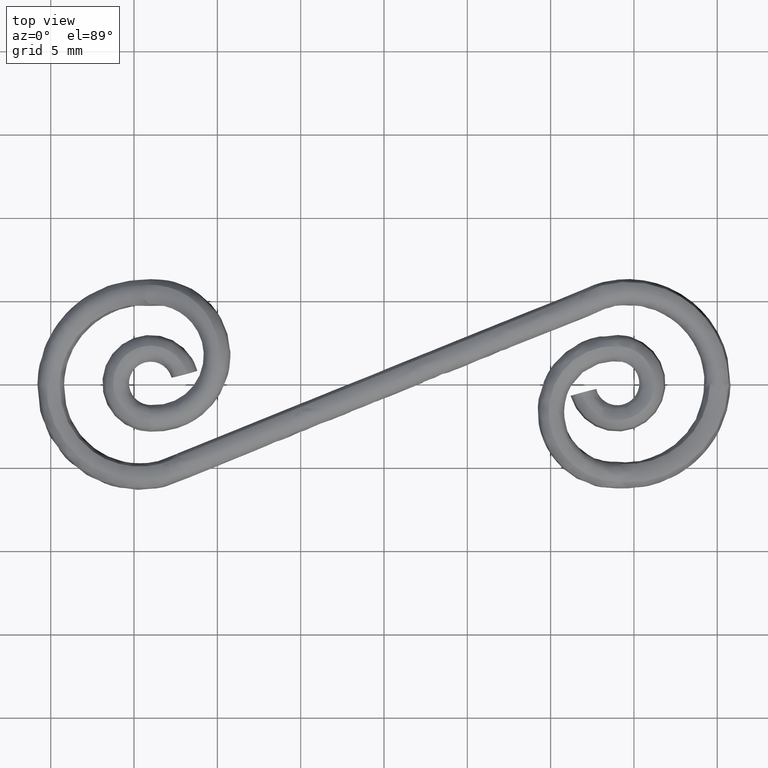
[diagram: clean part render]
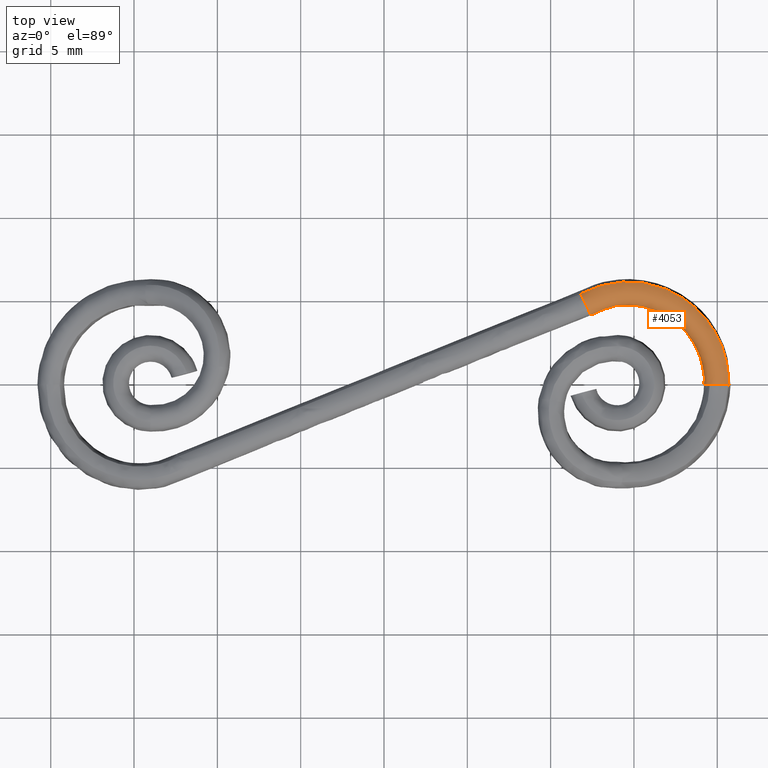
[diagram: same view with one face highlighted and labeled with its STEP entity id]
A machine part, top view. The second image highlights one B-rep face of the part: STEP entity #4053.
In plain terms, the highlighted face is a freeform B-spline surface patch.
Its self-contained STEP definition (entity closure, byte-faithful):
#3107=CARTESIAN_POINT('',(11.804181994079260,5.424845913585041,0.123689405258838));
#3108=VERTEX_POINT('',#3107);
#3294=CARTESIAN_POINT('',(12.335542621358631,4.187754795405872,-0.706233112849517));
#3295=VERTEX_POINT('',#3294);
#3319=CARTESIAN_POINT('',(12.084178302908700,4.872104406510360,0.400757161455091));
#3320=VERTEX_POINT('',#3319);
#3321=CARTESIAN_POINT('',(12.335542621358631,4.187754795405872,-0.706233112849517));
#3322=CARTESIAN_POINT('',(12.346186960298590,4.171744423650784,-0.660796658351899));
#3323=CARTESIAN_POINT('',(12.355106818372860,4.159564194063967,-0.613920825281504));
#3324=CARTESIAN_POINT('',(12.366081280059060,4.146865039895398,-0.539970446389851));
#3325=CARTESIAN_POINT('',(12.369392846760521,4.143568770212963,-0.513842325060314));
#3326=CARTESIAN_POINT('',(12.374861881854260,4.139370068990931,-0.461829107622554));
#3327=CARTESIAN_POINT('',(12.377040605979831,4.138439252087824,-0.435827754224103));
#3328=CARTESIAN_POINT('',(12.381905003878041,4.139161639676659,-0.357839501495644));
#3329=CARTESIAN_POINT('',(12.382899140509460,4.144382286033396,-0.305789905615369));
#3330=CARTESIAN_POINT('',(12.380215790448080,4.164600510771916,-0.202055123114213));
#3331=CARTESIAN_POINT('',(12.376622768084840,4.179191277723033,-0.152000851671948));
#3332=CARTESIAN_POINT('',(12.368103907916501,4.207306880933133,-0.079439659711513));
#3333=CARTESIAN_POINT('',(12.364737485927551,4.217727436997852,-0.055676857743348));
#3334=CARTESIAN_POINT('',(12.356931297718500,4.240705233619270,-0.009015679822188));
#3335=CARTESIAN_POINT('',(12.352478413697989,4.253293317944588,0.013905804390968));
#3336=CARTESIAN_POINT('',(12.337774770060641,4.293498544849094,0.079903592092811));
#3337=CARTESIAN_POINT('',(12.326121939926839,4.323752349307138,0.120751425321062));
#3338=CARTESIAN_POINT('',(12.305771438592510,4.374486991602668,0.177134193621832));
#3339=CARTESIAN_POINT('',(12.298465181761109,4.392394718717777,0.195190771996548));
#3340=CARTESIAN_POINT('',(12.283009009605260,4.429679328380185,0.229126989332362));
#3341=CARTESIAN_POINT('',(12.274910948508660,4.448935667061114,0.244925115324546));
#3342=CARTESIAN_POINT('',(12.249572165544659,4.508438396366236,0.289016080492868));
#3343=CARTESIAN_POINT('',(12.231298913130191,4.550398469637587,0.314043673306009));
#3344=CARTESIAN_POINT('',(12.201842486435821,4.616735331454092,0.345112944676956));
#3345=CARTESIAN_POINT('',(12.191688171609220,4.639396538711696,0.354351848865795));
#3346=CARTESIAN_POINT('',(12.171128897209140,4.684885913176354,0.370263612756541));
#3347=CARTESIAN_POINT('',(12.150213188547390,4.730781543460217,0.383728421224207));
#3348=CARTESIAN_POINT('',(12.128591115520500,4.777482287369179,0.392343904930553));
#3349=CARTESIAN_POINT('',(12.106605765554299,4.824597096428668,0.398465413797110));
#3350=CARTESIAN_POINT('',(12.095340204211050,4.848552772992179,0.400274686957508));
#3351=CARTESIAN_POINT('',(12.084178302908700,4.872104406510360,0.400757161455091));
#3352=B_SPLINE_CURVE_WITH_KNOTS('',3,(#3321,#3322,#3323,#3324,#3325,#3326,#3327,#3328,#3329,#3330,#3331,#3332,#3333,#3334,#3335,#3336,#3337,#3338,#3339,#3340,#3341,#3342,#3343,#3344,#3345,#3346,#3347,#3348,#3349,#3350,#3351),.UNSPECIFIED.,.F.,.U.,(4,2,2,2,2,2,2,2,2,2,2,2,2,1,2,4),(0.378536426788726,0.437500000000003,0.468750000000003,0.500000000000003,0.562500000000003,0.625000000000003,0.656250000000003,0.687500000000003,0.750000000000003,0.781250000000003,0.812500000000003,0.875000000000002,0.906250000000002,0.937500000000001,0.968750000000001,1.0),.UNSPECIFIED.);
#3353=EDGE_CURVE('',#3295,#3320,#3352,.T.);
#3355=CARTESIAN_POINT('',(11.804181994079260,5.424845913585041,0.123689405258838));
#3356=CARTESIAN_POINT('',(11.811839530945260,5.411149987452061,0.141799689163391));
#3357=CARTESIAN_POINT('',(11.819816295103459,5.396676664753339,0.159173153859258));
#3358=CARTESIAN_POINT('',(11.846133339607670,5.348303391982659,0.211954338760657));
#3359=CARTESIAN_POINT('',(11.865807128047511,5.311237297599271,0.244819561957394));
#3360=CARTESIAN_POINT('',(11.906446715714139,5.233110695991710,0.301075002486918));
#3361=CARTESIAN_POINT('',(11.927575772766710,5.191761463828811,0.324877406574257));
#3362=CARTESIAN_POINT('',(11.960511719349780,5.126253543354437,0.353981286420460));
#3363=CARTESIAN_POINT('',(11.971710638162561,5.103806364119354,0.362562662354210));
#3364=CARTESIAN_POINT('',(11.994053426535300,5.058683707589814,0.377096220725309));
#3365=CARTESIAN_POINT('',(12.016459548214030,5.013098651928086,0.389115579655520));
#3366=CARTESIAN_POINT('',(12.038993816141719,4.966584173818676,0.396079294489509));
#3367=CARTESIAN_POINT('',(12.061594837644311,4.919585679492353,0.400410130186192));
#3368=CARTESIAN_POINT('',(12.073022751727351,4.895646707783027,0.401239469722364));
#3369=CARTESIAN_POINT('',(12.084178302908700,4.872104406510360,0.400757161455091));
#3370=B_SPLINE_CURVE_WITH_KNOTS('',3,(#3355,#3356,#3357,#3358,#3359,#3360,#3361,#3362,#3363,#3364,#3365,#3366,#3367,#3368,#3369),.UNSPECIFIED.,.F.,.U.,(4,2,2,2,2,1,2,4),(0.721228459015510,0.749999999999998,0.812499999999999,0.874999999999999,0.906249999999999,0.937500000000000,0.968750000000000,1.0),.UNSPECIFIED.);
#3371=EDGE_CURVE('',#3108,#3320,#3370,.T.);
#3648=CARTESIAN_POINT('',(20.666801233909851,-0.017143527158840,-0.658434761472240));
#3649=VERTEX_POINT('',#3648);
#3650=CARTESIAN_POINT('',(11.804181994079260,5.424845913585041,0.123689405258838));
#3651=CARTESIAN_POINT('',(12.014661032666821,5.538884365293390,0.109456331151509));
#3652=CARTESIAN_POINT('',(12.252540454620190,5.650240824064565,0.093057577372786));
#3653=CARTESIAN_POINT('',(12.730117254640970,5.836682796301125,0.059472256041319));
#3654=CARTESIAN_POINT('',(12.981295777672180,5.916183016496299,0.041477079911790));
#3655=CARTESIAN_POINT('',(13.747045937906041,6.104268269250071,-0.014352259490925));
#3656=CARTESIAN_POINT('',(14.273676640320261,6.162138559148943,-0.054023554959897));
#3657=CARTESIAN_POINT('',(15.849501342662091,6.127431437077393,-0.176440765796501));
#3658=CARTESIAN_POINT('',(16.892170544426119,5.821840303211759,-0.262483871324767));
#3659=CARTESIAN_POINT('',(18.686219669410750,4.726505048993016,-0.420696231254596));
#3660=CARTESIAN_POINT('',(19.435367769621319,3.938123541511622,-0.492668667199633));
#3661=CARTESIAN_POINT('',(20.188802054328690,2.550729423885031,-0.575662532405420));
#3662=CARTESIAN_POINT('',(20.378991452856081,2.055213187417775,-0.599205670831201));
#3663=CARTESIAN_POINT('',(20.563367071184601,1.287039994649259,-0.627165364608087));
#3664=CARTESIAN_POINT('',(20.608056060793562,1.026901400253641,-0.635261947477950));
#3665=CARTESIAN_POINT('',(20.662853299910370,0.505471513296656,-0.648802888123731));
#3666=CARTESIAN_POINT('',(20.672931430952300,0.230701065274772,-0.654485470713420));
#3667=CARTESIAN_POINT('',(20.666801233909851,-0.017143527158840,-0.658434761472240));
#3668=B_SPLINE_CURVE_WITH_KNOTS('',3,(#3650,#3651,#3652,#3653,#3654,#3655,#3656,#3657,#3658,#3659,#3660,#3661,#3662,#3663,#3664,#3665,#3666,#3667),.UNSPECIFIED.,.F.,.U.,(4,2,2,2,2,2,2,2,4),(0.003141182428009,0.062500000000000,0.125000000000000,0.250000000000000,0.500000000000000,0.750000000000000,0.875000000000000,0.937500000000000,0.999396151254101),.UNSPECIFIED.);
#3669=EDGE_CURVE('',#3108,#3649,#3668,.T.);
#3691=CARTESIAN_POINT('',(19.229844420507309,0.018933310117276,-1.313503753576124));
#3692=VERTEX_POINT('',#3691);
#3737=CARTESIAN_POINT('',(12.335542621358631,4.187754795405872,-0.706233112849517));
#3738=CARTESIAN_POINT('',(12.348885899059800,4.195104199210751,-0.707133276838736));
#3739=CARTESIAN_POINT('',(12.361899589514680,4.202271856972318,-0.708011209987599));
#3740=CARTESIAN_POINT('',(12.566360689059399,4.314879117095403,-0.721804718257237));
#3741=CARTESIAN_POINT('',(12.735949185809179,4.393087272212719,-0.733516764549878));
#3742=CARTESIAN_POINT('',(13.113493171747530,4.540477895240592,-0.760067382558875));
#3743=CARTESIAN_POINT('',(13.307070201580560,4.601747034572388,-0.773935843381428));
#3744=CARTESIAN_POINT('',(13.897214821007930,4.746700533953153,-0.816962215973040));
#3745=CARTESIAN_POINT('',(14.303076080797849,4.791300285149705,-0.847535970693515));
#3746=CARTESIAN_POINT('',(15.517525398862920,4.764553916259304,-0.941880128393192));
#3747=CARTESIAN_POINT('',(16.321085147598779,4.529043286048492,-1.008191630302066));
#3748=CARTESIAN_POINT('',(17.703715608032638,3.684896784116575,-1.130122440841374));
#3749=CARTESIAN_POINT('',(18.281066307475822,3.077311042831941,-1.185590065786607));
#3750=CARTESIAN_POINT('',(18.861720802833041,2.008080830797669,-1.249551738342973));
#3751=CARTESIAN_POINT('',(19.008295534014870,1.626198687331399,-1.267695967261704));
#3752=CARTESIAN_POINT('',(19.150389973366401,1.034186441789778,-1.289243972642232));
#3753=CARTESIAN_POINT('',(19.184830911118951,0.833703987531238,-1.295483860652940));
#3754=CARTESIAN_POINT('',(19.227267264070349,0.429899995856473,-1.305970285148327));
#3755=CARTESIAN_POINT('',(19.235686355420061,0.243011800061384,-1.309956292295934));
#3756=CARTESIAN_POINT('',(19.229923991238010,0.021985001880272,-1.313455442021319));
#3757=CARTESIAN_POINT('',(19.229884302214771,0.020462786426026,-1.313479540455110));
#3758=CARTESIAN_POINT('',(19.229844420507309,0.018933310117276,-1.313503753576124));
#3759=B_SPLINE_CURVE_WITH_KNOTS('',3,(#3737,#3738,#3739,#3740,#3741,#3742,#3743,#3744,#3745,#3746,#3747,#3748,#3749,#3750,#3751,#3752,#3753,#3754,#3755,#3756,#3757,#3758),.UNSPECIFIED.,.F.,.U.,(4,2,2,2,2,2,2,2,2,2,4),(-0.004044767721441,0.0,0.062500000000000,0.125000000000000,0.250000000000000,0.500000000000000,0.750000000000000,0.875000000000000,0.937500000000000,1.0,1.000431240073555),.UNSPECIFIED.);
#3760=EDGE_CURVE('',#3295,#3692,#3759,.T.);
#3765=CARTESIAN_POINT('',(11.667939786808111,5.349957841920308,0.132884114842049));
#3766=CARTESIAN_POINT('',(11.742333449136421,5.234193474461764,0.290773722058969));
#3767=CARTESIAN_POINT('',(11.844752867862340,5.060497313181013,0.391272054869940));
#3768=CARTESIAN_POINT('',(12.047813935209220,4.695315816736993,0.420741595393448));
#3769=CARTESIAN_POINT('',(12.147205167746479,4.506079208139540,0.349531334605195));
#3770=CARTESIAN_POINT('',(12.285589558521769,4.221163318057828,0.075428344056574));
#3771=CARTESIAN_POINT('',(12.323730568831049,4.127238500962541,-0.125776505341262));
#3772=CARTESIAN_POINT('',(12.317845780757681,4.097038165406387,-0.459464271136751));
#3773=CARTESIAN_POINT('',(12.300600451095571,4.112814584103424,-0.586318527782425));
#3774=CARTESIAN_POINT('',(12.271088243587361,4.152252842565468,-0.701884822310089));
#3775=CARTESIAN_POINT('',(11.701480568477409,5.368433066770733,0.130621411130067));
#3776=CARTESIAN_POINT('',(11.776045569356089,5.252763058101871,0.288499459284650));
#3777=CARTESIAN_POINT('',(11.878725762065450,5.079210508552214,0.388980199415157));
#3778=CARTESIAN_POINT('',(12.082340006905360,4.714333653671905,0.418412420732168));
#3779=CARTESIAN_POINT('',(12.182020236577729,4.525256198975301,0.347182663223284));
#3780=CARTESIAN_POINT('',(12.320844261365311,4.240582419545282,0.073050013471360));
#3781=CARTESIAN_POINT('',(12.359133201359100,4.146739068323996,-0.128164815772748));
#3782=CARTESIAN_POINT('',(12.353303260397469,4.116568936450669,-0.461856281761079));
#3783=CARTESIAN_POINT('',(12.336037432333271,4.132334065947616,-0.588709155524475));
#3784=CARTESIAN_POINT('',(12.306468526149811,4.171741099330051,-0.704271624977282));
#3785=CARTESIAN_POINT('',(11.734609905958379,5.386681347800626,0.128386458458773));
#3786=CARTESIAN_POINT('',(11.809430230670690,5.271151964318262,0.286247281884514));
#3787=CARTESIAN_POINT('',(11.912499021144860,5.097813443183675,0.386701806317017));
#3788=CARTESIAN_POINT('',(12.116937594637241,4.733390604295098,0.416078416522148));
#3789=CARTESIAN_POINT('',(12.217048479119359,4.544550341420647,0.344819606043291));
#3790=CARTESIAN_POINT('',(12.356527632999869,4.260237387190641,0.070642759760407));
#3791=CARTESIAN_POINT('',(12.395037013101490,4.166515447446093,-0.130586940889862));
#3792=CARTESIAN_POINT('',(12.389288803176550,4.136390329892635,-0.464283920655483));
#3793=CARTESIAN_POINT('',(12.371992428816810,4.152138635114095,-0.591134733700224));
#3794=CARTESIAN_POINT('',(12.342339031786651,4.191499133176668,-0.706691503210039));
#3795=CARTESIAN_POINT('',(11.989468933105639,5.527043060250841,0.111192953181823));
#3796=CARTESIAN_POINT('',(12.061416938681440,5.409931931032360,0.269247554220893));
#3797=CARTESIAN_POINT('',(12.160114113367360,5.234186034457820,0.369997004754095));
#3798=CARTESIAN_POINT('',(12.355279216216379,4.864656466530580,0.399999239415439));
#3799=CARTESIAN_POINT('',(12.450545350324219,4.673148296440290,0.329067274802050));
#3800=CARTESIAN_POINT('',(12.582654474523681,4.384776828216740,0.055387639883732));
#3801=CARTESIAN_POINT('',(12.618683958727900,4.289689273344215,-0.145674757011557));
#3802=CARTESIAN_POINT('',(12.612016288573290,4.259057854595287,-0.479309705898263));
#3803=CARTESIAN_POINT('',(12.595063548445831,4.274995403518603,-0.606183701656527));
#3804=CARTESIAN_POINT('',(12.566360647348750,4.314879331693350,-0.721804595154375));
#3805=CARTESIAN_POINT('',(12.240228925328131,5.645436693908660,0.093924219524213));
#3806=CARTESIAN_POINT('',(12.304616298309240,5.524582477569350,0.252496393122473));
#3807=CARTESIAN_POINT('',(12.391806333490720,5.343139703196861,0.354033579813123));
#3808=CARTESIAN_POINT('',(12.562561442891500,4.961525437916630,0.385706832931968));
#3809=CARTESIAN_POINT('',(12.645075035711841,4.763703863816300,0.315647860765991));
#3810=CARTESIAN_POINT('',(12.757784481308660,4.465728226940940,0.043296257694960));
#3811=CARTESIAN_POINT('',(12.787286288173620,4.367409048290860,-0.157319277598787));
#3812=CARTESIAN_POINT('',(12.778198381909441,4.335579510973972,-0.490788544731838));
#3813=CARTESIAN_POINT('',(12.762150170492429,4.351964893332823,-0.617724460722642));
#3814=CARTESIAN_POINT('',(12.735949203170740,4.393087482188209,-0.733516626984505));
#3815=CARTESIAN_POINT('',(12.730116366875009,5.836684565650915,0.059473139239198));
#3816=CARTESIAN_POINT('',(12.784039627717220,5.711745241779930,0.218781195962314));
#3817=CARTESIAN_POINT('',(12.855303486022780,5.524085050787060,0.321438383260579));
#3818=CARTESIAN_POINT('',(12.992274541558540,5.129281886571100,0.355487484358734));
#3819=CARTESIAN_POINT('',(13.057138293941859,4.924570045188641,0.286669729489876));
#3820=CARTESIAN_POINT('',(13.142998096648681,4.616112703628220,0.016206316602923));
#3821=CARTESIAN_POINT('',(13.163465436670240,4.514266632159531,-0.183773872962894));
#3822=CARTESIAN_POINT('',(13.151027870202190,4.481129518854019,-0.517007575145482));
#3823=CARTESIAN_POINT('',(13.136231552717820,4.498003660359458,-0.644031529384512));
#3824=CARTESIAN_POINT('',(13.113493328376491,4.540478094318272,-0.760067210896996));
#3825=CARTESIAN_POINT('',(12.981294909373920,5.916184754574655,0.041477950891631));
#3826=CARTESIAN_POINT('',(13.029852936625881,5.789547284003150,0.201170389064878));
#3827=CARTESIAN_POINT('',(13.092951014128360,5.599302565612660,0.304412597762143));
#3828=CARTESIAN_POINT('',(13.212600074910240,5.199016892123630,0.339702699743544));
#3829=CARTESIAN_POINT('',(13.268414279289299,4.991440829240360,0.271533282483251));
#3830=CARTESIAN_POINT('',(13.340507549268240,4.678626342111291,0.002056146976421));
#3831=CARTESIAN_POINT('',(13.356342676571639,4.575314177148130,-0.197592176148970));
#3832=CARTESIAN_POINT('',(13.342187652074220,4.541633523775985,-0.530702833560780));
#3833=CARTESIAN_POINT('',(13.328033215469270,4.558710841062501,-0.657772773815812));
#3834=CARTESIAN_POINT('',(13.307070433768709,4.601747227737488,-0.773935653220573));
#3835=CARTESIAN_POINT('',(13.747045132147271,6.104269906869734,-0.014351427761220));
#3836=CARTESIAN_POINT('',(13.779246551236501,5.973614881523981,0.146533539117760));
#3837=CARTESIAN_POINT('',(13.817450194033340,5.777255579152630,0.251590753944044));
#3838=CARTESIAN_POINT('',(13.884290927183701,5.363999169167980,0.290731012461353));
#3839=CARTESIAN_POINT('',(13.912516423482881,5.149646825396650,0.224573036987839));
#3840=CARTESIAN_POINT('',(13.942640656644659,4.826524056350750,-0.041844212340229));
#3841=CARTESIAN_POINT('',(13.944353893518960,4.719743367034450,-0.240462933341208));
#3842=CARTESIAN_POINT('',(13.924962986273430,4.684776813184346,-0.573191849954723));
#3843=CARTESIAN_POINT('',(13.912765409334920,4.702334822213453,-0.700404460309097));
#3844=CARTESIAN_POINT('',(13.897215295695609,4.746700708142430,-0.816961966441601));
#3845=CARTESIAN_POINT('',(14.273675881772331,6.162140120932710,-0.054022752859976));
#3846=CARTESIAN_POINT('',(14.294628340963561,6.030248966708040,0.107709602969022));
#3847=CARTESIAN_POINT('',(14.315711293703959,5.832008337287150,0.214056527330007));
#3848=CARTESIAN_POINT('',(14.346234076167701,5.414761134348749,0.255932634790421));
#3849=CARTESIAN_POINT('',(14.355485951702780,5.198323899308250,0.191203951825069));
#3850=CARTESIAN_POINT('',(14.356746766242480,4.872029554500030,-0.073039000723388));
#3851=CARTESIAN_POINT('',(14.348747941361260,4.764181710723849,-0.270926106408341));
#3852=CARTESIAN_POINT('',(14.325756164207530,4.728819562871994,-0.603383766181356));
#3853=CARTESIAN_POINT('',(14.314904385655060,4.746525487306025,-0.730697755603845));
#3854=CARTESIAN_POINT('',(14.303076738257040,4.791300445036934,-0.847535676414563));
#3855=CARTESIAN_POINT('',(15.849500737596999,6.127432752317994,-0.176440060023266));
#3856=CARTESIAN_POINT('',(15.836793194820901,5.996282934789501,-0.012092841133506));
#3857=CARTESIAN_POINT('',(15.806646317568701,5.799170711594410,0.098233852880615));
#3858=CARTESIAN_POINT('',(15.728495786200799,5.384317325885331,0.148552207467646));
#3859=CARTESIAN_POINT('',(15.680973369983450,5.169130761121060,0.088234016031053));
#3860=CARTESIAN_POINT('',(15.595866914167299,4.844739111711551,-0.169299522254454));
#3861=CARTESIAN_POINT('',(15.558806945888000,4.737531576577021,-0.364929020656397));
#3862=CARTESIAN_POINT('',(15.525040407733959,4.702407029051556,-0.696549642412944));
#3863=CARTESIAN_POINT('',(15.518215641334820,4.720024344174622,-0.824176467102081));
#3864=CARTESIAN_POINT('',(15.517526649744299,4.764554029710669,-0.941879688828099));
#3865=CARTESIAN_POINT('',(16.892170057523131,5.821841428645736,-0.262483239710729));
#3866=CARTESIAN_POINT('',(16.857190840857900,5.697219101996541,-0.096298117547601));
#3867=CARTESIAN_POINT('',(16.793146953559901,5.510041656824850,0.016825827206446));
#3868=CARTESIAN_POINT('',(16.643091066918348,5.116262907704759,0.073077960882768));
#3869=CARTESIAN_POINT('',(16.558003086619951,4.912086427421199,0.015859758576306));
#3870=CARTESIAN_POINT('',(16.415750449947900,4.604443833139550,-0.236957955391995));
#3871=CARTESIAN_POINT('',(16.359461761513149,4.502872130774830,-0.431000657863853));
#3872=CARTESIAN_POINT('',(16.318565984375589,4.469837266714171,-0.762032956726574));
#3873=CARTESIAN_POINT('',(16.314405769137998,4.486673701553881,-0.889879664470523));
#3874=CARTESIAN_POINT('',(16.321086854376048,4.529043363825561,-1.008191079121066));
#3875=CARTESIAN_POINT('',(18.686219419287749,4.726505794081600,-0.420695748245007));
#3876=CARTESIAN_POINT('',(18.612918858089898,4.625280078428401,-0.251131167790174));
#3877=CARTESIAN_POINT('',(18.490550744661949,4.473711917123300,-0.132863760394961));
#3878=CARTESIAN_POINT('',(18.216772367952299,4.155470939727900,-0.065700856421141));
#3879=CARTESIAN_POINT('',(18.067047986118151,3.990757798338580,-0.117218937770194));
#3880=CARTESIAN_POINT('',(17.826468015086700,3.743148523309640,-0.361365408992206));
#3881=CARTESIAN_POINT('',(17.737093877106702,3.661777126162680,-0.552490385737283));
#3882=CARTESIAN_POINT('',(17.683931412178900,3.636231992146084,-0.882440909562540));
#3883=CARTESIAN_POINT('',(17.684355937400639,3.650269400907105,-1.010691931170892));
#3884=CARTESIAN_POINT('',(17.703718226692260,3.684896790537964,-1.130121666406390));
#3885=CARTESIAN_POINT('',(19.435367637821649,3.938124096534592,-0.492668258450431));
#3886=CARTESIAN_POINT('',(19.346065078286799,3.853738395276555,-0.321566327071045));
#3887=CARTESIAN_POINT('',(19.199342304952051,3.727800441350210,-0.200959106317480));
#3888=CARTESIAN_POINT('',(18.873900706011302,3.463928629010355,-0.128832784291456));
#3889=CARTESIAN_POINT('',(18.697185895337199,3.327619649075665,-0.177757824843404));
#3890=CARTESIAN_POINT('',(18.415547091427250,3.123219955852780,-0.417959664788165));
#3891=CARTESIAN_POINT('',(18.312357382834652,3.056387901682305,-0.607757341432482));
#3892=CARTESIAN_POINT('',(18.254072729039450,3.036233496913653,-0.937215758857977));
#3893=CARTESIAN_POINT('',(18.256411740073329,3.048256241907668,-1.065650708303010));
#3894=CARTESIAN_POINT('',(18.281069380987489,3.077311013660714,-1.185589179991277));
#3895=CARTESIAN_POINT('',(20.188802076463599,2.550729731639200,-0.575662220266416));
#3896=CARTESIAN_POINT('',(20.083405955906951,2.495979100701696,-0.402787516465144));
#3897=CARTESIAN_POINT('',(19.912189206568300,2.415145167137245,-0.279482178781038));
#3898=CARTESIAN_POINT('',(19.534788908730700,2.246952121646120,-0.201632377080864));
#3899=CARTESIAN_POINT('',(19.330929328129049,2.160628714357360,-0.247567299121071));
#3900=CARTESIAN_POINT('',(19.007996949595402,2.032269090201970,-0.483220461331527));
#3901=CARTESIAN_POINT('',(18.890912715227451,1.991023290428375,-0.671487588750181));
#3902=CARTESIAN_POINT('',(18.827476673938051,1.980355389747927,-1.000378548522030));
#3903=CARTESIAN_POINT('',(18.831741156375010,1.988832698274688,-1.129025593533504));
#3904=CARTESIAN_POINT('',(18.861724466842269,2.008080755419435,-1.249550707977536));
#3905=CARTESIAN_POINT('',(20.378991522386631,2.055213419039190,-0.599205388437966));
#3906=CARTESIAN_POINT('',(20.269532902485551,2.011047134274455,-0.425827796383978));
#3907=CARTESIAN_POINT('',(20.092133145953898,1.946322371411905,-0.301757075451170));
#3908=CARTESIAN_POINT('',(19.701616941843749,1.812301562848675,-0.222283677148797));
#3909=CARTESIAN_POINT('',(19.490905227724099,1.743830794867575,-0.267370383671558));
#3910=CARTESIAN_POINT('',(19.157549155347599,1.642629319286785,-0.501733210052714));
#3911=CARTESIAN_POINT('',(19.036957548019501,1.610521793444110,-0.689566162832238));
#3912=CARTESIAN_POINT('',(18.972221168384579,1.603242040855758,-1.018296151541643));
#3913=CARTESIAN_POINT('',(18.976971705350039,1.610453070980487,-1.147003362841031));
#3914=CARTESIAN_POINT('',(19.008299379599130,1.626198597744743,-1.267694892441684));
#3915=CARTESIAN_POINT('',(20.563367203574000,1.287040125299005,-0.627165121665412));
#3916=CARTESIAN_POINT('',(20.449970264120498,1.259282206088744,-0.453190302174719));
#3917=CARTESIAN_POINT('',(20.266576517895199,1.219530651581732,-0.328210617120179));
#3918=CARTESIAN_POINT('',(19.863345392603900,1.138485272345294,-0.246809047447868));
#3919=CARTESIAN_POINT('',(19.645991043352300,1.097690511503504,-0.290888420078762));
#3920=CARTESIAN_POINT('',(19.302529996101150,1.038590875440146,-0.523718855230973));
#3921=CARTESIAN_POINT('',(19.178538273774500,1.020649925891062,-0.711036186881280));
#3922=CARTESIAN_POINT('',(19.112541357071780,1.018622623798581,-1.039575009919491));
#3923=CARTESIAN_POINT('',(19.117763106175541,1.023870602084988,-1.168353675147629));
#3924=CARTESIAN_POINT('',(19.150394059382659,1.034186333389084,-1.289242838957815));
#3925=CARTESIAN_POINT('',(20.608056212764080,1.026901499449758,-0.635261716824499));
#3926=CARTESIAN_POINT('',(20.493704701757299,1.004700203836400,-0.461113951838300));
#3927=CARTESIAN_POINT('',(20.308858134775850,0.973405719511550,-0.335871048590565));
#3928=CARTESIAN_POINT('',(19.902545178676998,0.910300241221099,-0.253911118555416));
#3929=CARTESIAN_POINT('',(19.683580796773601,0.878877840234273,-0.297698787306970));
#3930=CARTESIAN_POINT('',(19.337670525704851,0.834035808202711,-0.530085472652515));
#3931=CARTESIAN_POINT('',(19.212854694122299,0.820892306889648,-0.717253490913115));
#3932=CARTESIAN_POINT('',(19.146552261632980,0.820643721631171,-1.045736956645692));
#3933=CARTESIAN_POINT('',(19.151888227188689,0.825226919784649,-1.174536313707135));
#3934=CARTESIAN_POINT('',(19.184835071960080,0.833703873275426,-1.295482708649332));
#3935=CARTESIAN_POINT('',(20.663119486899770,0.502940408835352,-0.648868411087614));
#3936=CARTESIAN_POINT('',(20.547591804005449,0.491931048569271,-0.474430003282367));
#3937=CARTESIAN_POINT('',(20.360955162914301,0.477670464034693,-0.348744750292609));
#3938=CARTESIAN_POINT('',(19.950844987308649,0.450698829027626,-0.265846471755425));
#3939=CARTESIAN_POINT('',(19.729896842650049,0.438153865371521,-0.309143919939150));
#3940=CARTESIAN_POINT('',(19.380968836029499,0.422028933877194,-0.540784865744977));
#3941=CARTESIAN_POINT('',(19.255137614362798,0.418548260669848,-0.727701957172590));
#3942=CARTESIAN_POINT('',(19.188458779444321,0.421882291226323,-1.056092393729980));
#3943=CARTESIAN_POINT('',(19.193935486993158,0.425126513233794,-1.184926524732375));
#3944=CARTESIAN_POINT('',(19.227271562632509,0.429899870823855,-1.305969099426803));
#3945=CARTESIAN_POINT('',(20.673126641637499,0.225338389302274,-0.654596049828712));
#3946=CARTESIAN_POINT('',(20.557451000194899,0.222778498735759,-0.479995414262896));
#3947=CARTESIAN_POINT('',(20.370589195933452,0.221377834255712,-0.354063256004925));
#3948=CARTESIAN_POINT('',(19.960001419075400,0.221685817478094,-0.270641222534020));
#3949=CARTESIAN_POINT('',(19.738803777324051,0.223392568671385,-0.313665046248583));
#3950=CARTESIAN_POINT('',(19.389496257631251,0.228947903854543,-0.544889746245111));
#3951=CARTESIAN_POINT('',(19.263537356963099,0.232762279019807,-0.731666779505114));
#3952=CARTESIAN_POINT('',(19.196811233018781,0.238801036729558,-1.060005291634314));
#3953=CARTESIAN_POINT('',(19.202305662632039,0.241034382749083,-1.188858832803847));
#3954=CARTESIAN_POINT('',(19.235690712310820,0.243011670464497,-1.309955092293960));
#3955=CARTESIAN_POINT('',(20.665893311885750,-0.052169801401564,-0.658989470706036));
#3956=CARTESIAN_POINT('',(20.550299052259899,-0.051602182614224,-0.484339310777453));
#3957=CARTESIAN_POINT('',(20.363561119337142,-0.048242842261413,-0.358331778223358));
#3958=CARTESIAN_POINT('',(19.953236122477868,-0.037837509541592,-0.274749855035190));
#3959=CARTESIAN_POINT('',(19.732175771230789,-0.030855591472821,-0.317690147902055));
#3960=CARTESIAN_POINT('',(19.383077114943450,-0.017275466394132,-0.548787778417266));
#3961=CARTESIAN_POINT('',(19.257188501029582,-0.010760883522715,-0.735522055515985));
#3962=CARTESIAN_POINT('',(19.190488455054808,-0.003720992046570,-1.063844716712050));
#3963=CARTESIAN_POINT('',(19.195973155955230,-0.001861814707919,-1.192704183463248));
#3964=CARTESIAN_POINT('',(19.229331279513250,-0.000919471983635,-1.313816831737014));
#3965=CARTESIAN_POINT('',(20.665211566151950,-0.078287534852152,-0.659402882590075));
#3966=CARTESIAN_POINT('',(20.549616617192509,-0.077746078189270,-0.484753136279113));
#3967=CARTESIAN_POINT('',(20.362877635328111,-0.074426556058418,-0.358746233258872));
#3968=CARTESIAN_POINT('',(19.952550413635571,-0.064105689334569,-0.275165645515926));
#3969=CARTESIAN_POINT('',(19.731488900196940,-0.057167898912336,-0.318106636070697));
#3970=CARTESIAN_POINT('',(19.382388476187572,-0.043654902541797,-0.549205327955409));
#3971=CARTESIAN_POINT('',(19.256499267628399,-0.037162907364633,-0.735939962199980));
#3972=CARTESIAN_POINT('',(19.189799001570972,-0.030131390555301,-1.064262755842382));
#3973=CARTESIAN_POINT('',(19.195283785103960,-0.028269083240398,-1.193122173121867));
#3974=CARTESIAN_POINT('',(19.228642136869070,-0.027318083036220,-1.314234684530076));
#3975=CARTESIAN_POINT('',(20.664540148732879,-0.103993143581720,-0.659809737861598));
#3976=CARTESIAN_POINT('',(20.548942323662232,-0.103561946827282,-0.485161736983628));
#3977=CARTESIAN_POINT('',(20.362198964306629,-0.100410238012498,-0.359157490468130));
#3978=CARTESIAN_POINT('',(19.951862456543381,-0.090445351965022,-0.275582537930537));
#3979=CARTESIAN_POINT('',(19.730796091707280,-0.083693536833636,-0.318526472485272));
#3980=CARTESIAN_POINT('',(19.381688287433288,-0.070463453346679,-0.549629642887837));
#3981=CARTESIAN_POINT('',(19.255796595453319,-0.064066653632031,-0.736365784072337));
#3982=CARTESIAN_POINT('',(19.189095408436149,-0.057070431671144,-1.064689136415006));
#3983=CARTESIAN_POINT('',(19.194580535976790,-0.055194933095902,-1.193548344868104));
#3984=CARTESIAN_POINT('',(19.227939839445629,-0.054207446052321,-1.314660278679660));
#3985=B_SPLINE_SURFACE_WITH_KNOTS('',3,3,((#3765,#3775,#3785,#3795,#3805,#3815,#3825,#3835,#3845,#3855,#3865,#3875,#3885,#3895,#3905,#3915,#3925,#3935,#3945,#3955,#3965,#3975),(#3766,#3776,#3786,#3796,#3806,#3816,#3826,#3836,#3846,#3856,#3866,#3876,#3886,#3896,#3906,#3916,#3926,#3936,#3946,#3956,#3966,#3976),(#3767,#3777,#3787,#3797,#3807,#3817,#3827,#3837,#3847,#3857,#3867,#3877,#3887,#3897,#3907,#3917,#3927,#3937,#3947,#3957,#3967,#3977),(#3768,#3778,#3788,#3798,#3808,#3818,#3828,#3838,#3848,#3858,#3868,#3878,#3888,#3898,#3908,#3918,#3928,#3938,#3948,#3958,#3968,#3978),(#3769,#3779,#3789,#3799,#3809,#3819,#3829,#3839,#3849,#3859,#3869,#3879,#3889,#3899,#3909,#3919,#3929,#3939,#3949,#3959,#3969,#3979),(#3770,#3780,#3790,#3800,#3810,#3820,#3830,#3840,#3850,#3860,#3870,#3880,#3890,#3900,#3910,#3920,#3930,#3940,#3950,#3960,#3970,#3980),(#3771,#3781,#3791,#3801,#3811,#3821,#3831,#3841,#3851,#3861,#3871,#3881,#3891,#3901,#3911,#3921,#3931,#3941,#3951,#3961,#3971,#3981),(#3772,#3782,#3792,#3802,#3812,#3822,#3832,#3842,#3852,#3862,#3872,#3882,#3892,#3902,#3912,#3922,#3932,#3942,#3952,#3962,#3972,#3982),(#3773,#3783,#3793,#3803,#3813,#3823,#3833,#3843,#3853,#3863,#3873,#3883,#3893,#3903,#3913,#3923,#3933,#3943,#3953,#3963,#3973,#3983),(#3774,#3784,#3794,#3804,#3814,#3824,#3834,#3844,#3854,#3864,#3874,#3884,#3894,#3904,#3914,#3924,#3934,#3944,#3954,#3964,#3974,#3984)),.UNSPECIFIED.,.F.,.F.,.U.,(4,2,2,2,4),(4,2,2,2,2,2,2,2,2,2,4),(0.0,0.628319173741622,1.256638347483244,1.884957521224866,2.261949025469840),(0.0,0.133979467303918,0.938294445976856,1.742609424649794,3.351239381995670,6.568499296687421,9.785759211379173,11.394389168725050,12.198704147397990,13.003019126070919,13.092492594593629),.UNSPECIFIED.);
#3986=ORIENTED_EDGE('',*,*,#3353,.F.);
#3987=ORIENTED_EDGE('',*,*,#3760,.T.);
#3988=CARTESIAN_POINT('',(19.214170338519150,0.018133423424466,-0.950347177439924));
#3989=VERTEX_POINT('',#3988);
#3990=CARTESIAN_POINT('',(19.229844420507309,0.018933310117276,-1.313503753576124));
#3991=CARTESIAN_POINT('',(19.225319329854461,0.018987375153912,-1.297043429615122));
#3992=CARTESIAN_POINT('',(19.221298131072938,0.019028893813825,-1.280392466518087));
#3993=CARTESIAN_POINT('',(19.207007069729499,0.019146485091093,-1.211924865028595));
#3994=CARTESIAN_POINT('',(19.201254047492949,0.019114121297061,-1.159647475570123));
#3995=CARTESIAN_POINT('',(19.199908837880240,0.018807763715055,-1.054772765971302));
#3996=CARTESIAN_POINT('',(19.204465356752820,0.018527980558745,-1.001534572181194));
#3997=CARTESIAN_POINT('',(19.214170338519150,0.018133423424466,-0.950347177439924));
#3998=B_SPLINE_CURVE_WITH_KNOTS('',3,(#3990,#3991,#3992,#3993,#3994,#3995,#3996,#3997),.UNSPECIFIED.,.F.,.U.,(4,2,2,4),(0.854609917568032,0.875000000000001,0.937500000000001,1.0),.UNSPECIFIED.);
#3999=EDGE_CURVE('',#3692,#3989,#3998,.T.);
#4000=ORIENTED_EDGE('',*,*,#3999,.T.);
#4001=CARTESIAN_POINT('',(19.558467106073220,0.008376980917974,-0.432724756660385));
#4002=VERTEX_POINT('',#4001);
#4003=CARTESIAN_POINT('',(19.558467106073220,0.008376980917974,-0.432724756660385));
#4004=CARTESIAN_POINT('',(19.555658592249490,0.008448949841557,-0.434584036995819));
#4005=CARTESIAN_POINT('',(19.552860648031370,0.008520731101431,-0.436463089588276));
#4006=CARTESIAN_POINT('',(19.528455671467970,0.009147577078235,-0.453087028847245));
#4007=CARTESIAN_POINT('',(19.507354527621160,0.009694733688417,-0.469101919762468));
#4008=CARTESIAN_POINT('',(19.467127329703850,0.010748392916261,-0.502950074366634));
#4009=CARTESIAN_POINT('',(19.447996433511769,0.011254936427522,-0.520760245562746));
#4010=CARTESIAN_POINT('',(19.393411780923721,0.012716744903252,-0.576722735411539));
#4011=CARTESIAN_POINT('',(19.360731945549130,0.013614895095844,-0.617376269103936));
#4012=CARTESIAN_POINT('',(19.302903750364411,0.015256730881088,-0.705474372968698));
#4013=CARTESIAN_POINT('',(19.278452406045432,0.015980895662616,-0.751939585770183));
#4014=CARTESIAN_POINT('',(19.248889157511599,0.016909271895096,-0.824288988969759));
#4015=CARTESIAN_POINT('',(19.240199249570988,0.017193079650418,-0.848899731571240));
#4016=CARTESIAN_POINT('',(19.225250396923940,0.017707194889781,-0.899153037131209));
#4017=CARTESIAN_POINT('',(19.219022428468421,0.017936733090322,-0.924757205051740));
#4018=CARTESIAN_POINT('',(19.214170338519150,0.018133423424466,-0.950347177439924));
#4019=B_SPLINE_CURVE_WITH_KNOTS('',3,(#4003,#4004,#4005,#4006,#4007,#4008,#4009,#4010,#4011,#4012,#4013,#4014,#4015,#4016,#4017,#4018),.UNSPECIFIED.,.F.,.U.,(4,2,2,2,2,2,2,4),(0.745970502604075,0.750000000000004,0.781250000000004,0.812500000000004,0.875000000000003,0.937500000000002,0.968750000000001,1.0),.UNSPECIFIED.);
#4020=EDGE_CURVE('',#4002,#3989,#4019,.T.);
#4021=ORIENTED_EDGE('',*,*,#4020,.F.);
#4022=CARTESIAN_POINT('',(20.666801233909851,-0.017143527158840,-0.658434761472240));
#4023=CARTESIAN_POINT('',(20.664773250460751,-0.017104747627945,-0.655368092520384));
#4024=CARTESIAN_POINT('',(20.662725410014620,-0.017065440390861,-0.652319661003744));
#4025=CARTESIAN_POINT('',(20.631112108550980,-0.016456387143683,-0.605995489560554));
#4026=CARTESIAN_POINT('',(20.597532312994339,-0.015780590883776,-0.566212902940785));
#4027=CARTESIAN_POINT('',(20.522788929226120,-0.014229612714951,-0.493253327648365));
#4028=CARTESIAN_POINT('',(20.481275203230741,-0.013346498855834,-0.459957661762412));
#4029=CARTESIAN_POINT('',(20.393979110525969,-0.011451942654883,-0.402711665899484));
#4030=CARTESIAN_POINT('',(20.347874602138919,-0.010434072851840,-0.378359105646522));
#4031=CARTESIAN_POINT('',(20.274862853544001,-0.008796822694870,-0.348531954876699));
#4032=CARTESIAN_POINT('',(20.249896858769262,-0.008232873619874,-0.339745552683803));
#4033=CARTESIAN_POINT('',(20.199762736987982,-0.007092367284332,-0.324878349748903));
#4034=CARTESIAN_POINT('',(20.174458045259069,-0.006512757424209,-0.318739073003405));
#4035=CARTESIAN_POINT('',(20.123368957726239,-0.005334622736747,-0.309073369105280));
#4036=CARTESIAN_POINT('',(20.097586055563848,-0.004736151792314,-0.305538807023220));
#4037=CARTESIAN_POINT('',(20.045550508060678,-0.003520641875120,-0.301028283246794));
#4038=CARTESIAN_POINT('',(20.019177842838509,-0.002900760639939,-0.300055131318090));
#4039=CARTESIAN_POINT('',(19.940203879584821,-0.001033044359159,-0.301033183836791));
#4040=CARTESIAN_POINT('',(19.888352626695951,0.000208224568061,-0.306771707190870));
#4041=CARTESIAN_POINT('',(19.786175967953010,0.002683966860817,-0.327973796402987));
#4042=CARTESIAN_POINT('',(19.735358770137282,0.003930845189880,-0.343701481962726));
#4043=CARTESIAN_POINT('',(19.642172462205011,0.006249156185784,-0.382888931308962));
#4044=CARTESIAN_POINT('',(19.599218774108628,0.007332512607100,-0.405742983853295));
#4045=CARTESIAN_POINT('',(19.558467106073220,0.008376980917974,-0.432724756660385));
#4046=B_SPLINE_CURVE_WITH_KNOTS('',3,(#4022,#4023,#4024,#4025,#4026,#4027,#4028,#4029,#4030,#4031,#4032,#4033,#4034,#4035,#4036,#4037,#4038,#4039,#4040,#4041,#4042,#4043,#4044,#4045),.UNSPECIFIED.,.F.,.U.,(4,2,2,2,2,2,2,2,2,2,2,4),(0.245628121571899,0.249999999999999,0.312500000000002,0.375000000000005,0.437500000000008,0.468750000000008,0.500000000000007,0.531250000000007,0.562500000000007,0.625000000000006,0.687500000000005,0.745970502604075),.UNSPECIFIED.);
#4047=EDGE_CURVE('',#3649,#4002,#4046,.T.);
#4048=ORIENTED_EDGE('',*,*,#4047,.F.);
#4049=ORIENTED_EDGE('',*,*,#3669,.F.);
#4050=ORIENTED_EDGE('',*,*,#3371,.T.);
#4051=EDGE_LOOP('',(#3986,#3987,#4000,#4021,#4048,#4049,#4050));
#4052=FACE_OUTER_BOUND('',#4051,.T.);
#4053=ADVANCED_FACE('',(#4052),#3985,.T.);